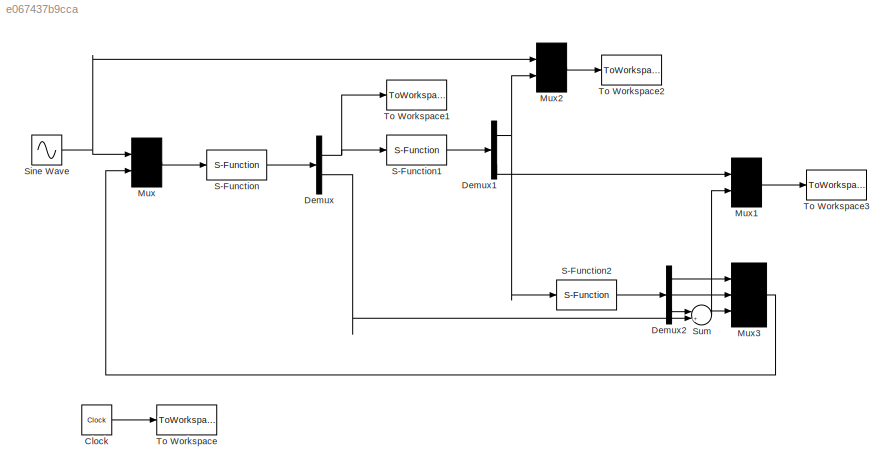
MODEL slx_e067437b9cca
KIND model
CONFIG AbsTol = auto
CONFIG FixedStep = auto
CONFIG MaxStep = auto
CONFIG MinStep = auto
CONFIG RelTol = 1e-3
CONFIG SampleTimeConstraint = Unconstrained
CONFIG Solver = ode45
CONFIG SolverMode = Auto
CONFIG SolverName = ode45
CONFIG StartTime = 0.0
CONFIG StopTime = 10
BLOCK [Clock] Clock
  DisplayTime = on
BLOCK [Demux] Demux
  DisplayOption = bar
  Outputs = 2
  Ports = [1, 2]
BLOCK [Demux] Demux1
  DisplayOption = bar
  Outputs = 3
  Ports = [1, 3]
BLOCK [Demux] Demux2
  DisplayOption = bar
  Outputs = 3
  Ports = [1, 3]
BLOCK [Mux] Mux
  Inputs = 2
  Ports = [2, 1]
BLOCK [Mux] Mux1
  Inputs = 2
  Ports = [2, 1]
BLOCK [Mux] Mux2
  Inputs = 2
  Ports = [2, 1]
BLOCK [Mux] Mux3
  Inputs = 3
  Ports = [3, 1]
BLOCK [S-Function] S-Function
  FunctionName = chap8_7ctrl
  Ports = [1, 1]
BLOCK [S-Function] S-Function1
  FunctionName = chap8_7plant
  Ports = [1, 1]
BLOCK [S-Function] S-Function2
  FunctionName = chap8_7td
  Ports = [1, 1]
BLOCK [Sin] Sine Wave
  Amplitude = 0.1
  Ports = [0, 1]
  SampleTime = 0
BLOCK [Sum] Sum
  IconShape = round
  InputSameDT = off
  Inputs = |+-
  OutDataTypeStr = Inherit: Inherit via internal rule
  Ports = [2, 1]
  SaturateOnIntegerOverflow = off
BLOCK [ToWorkspace] To Workspace
  FixptAsFi = on
  MaxDataPoints = inf
  Ports = [1]
  SampleTime = -1
  Save2DSignal = 3-D array (concatenate along third dimension)
  VariableName = t
BLOCK [ToWorkspace] To Workspace1
  FixptAsFi = on
  MaxDataPoints = inf
  Ports = [1]
  SampleTime = -1
  Save2DSignal = 3-D array (concatenate along third dimension)
  VariableName = ut
BLOCK [ToWorkspace] To Workspace2
  FixptAsFi = on
  MaxDataPoints = inf
  Ports = [1]
  SampleTime = -1
  Save2DSignal = 3-D array (concatenate along third dimension)
  VariableName = y
BLOCK [ToWorkspace] To Workspace3
  FixptAsFi = on
  MaxDataPoints = inf
  Ports = [1]
  SampleTime = -1
  Save2DSignal = 3-D array (concatenate along third dimension)
  VariableName = fx
LINE Clock:1 -> To Workspace:1
NET Demux1:1 -> Mux2:2, S-Function2:1
LINE Demux1:3 -> Mux1:1
LINE Demux2:1 -> Mux3:1
LINE Demux2:2 -> Mux3:2
LINE Demux2:3 -> Sum:1
NET Demux:1 -> S-Function1:1, To Workspace1:1
LINE Demux:2 -> Sum:2
LINE Mux1:1 -> To Workspace3:1
LINE Mux2:1 -> To Workspace2:1
LINE Mux3:1 -> Mux:2
LINE Mux:1 -> S-Function:1
LINE S-Function1:1 -> Demux1:1
LINE S-Function2:1 -> Demux2:1
LINE S-Function:1 -> Demux:1
NET Sine Wave:1 -> Mux2:1, Mux:1
NET Sum:1 -> Mux1:2, Mux3:3
note: NET lines group one-source signal fan-out (src -> all destinations, sorted); 1:1 wires keep LINE
